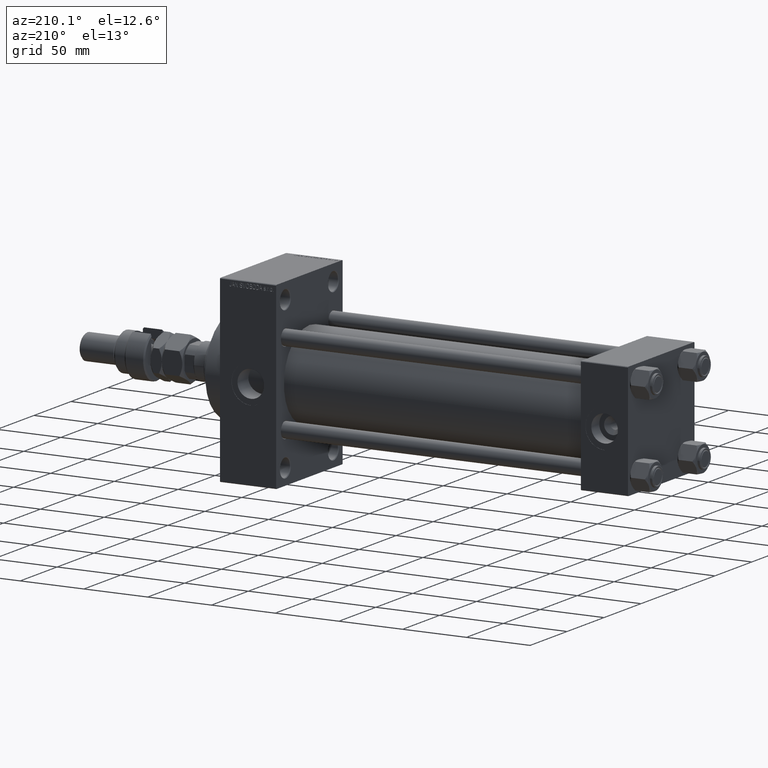
[diagram: clean part render]
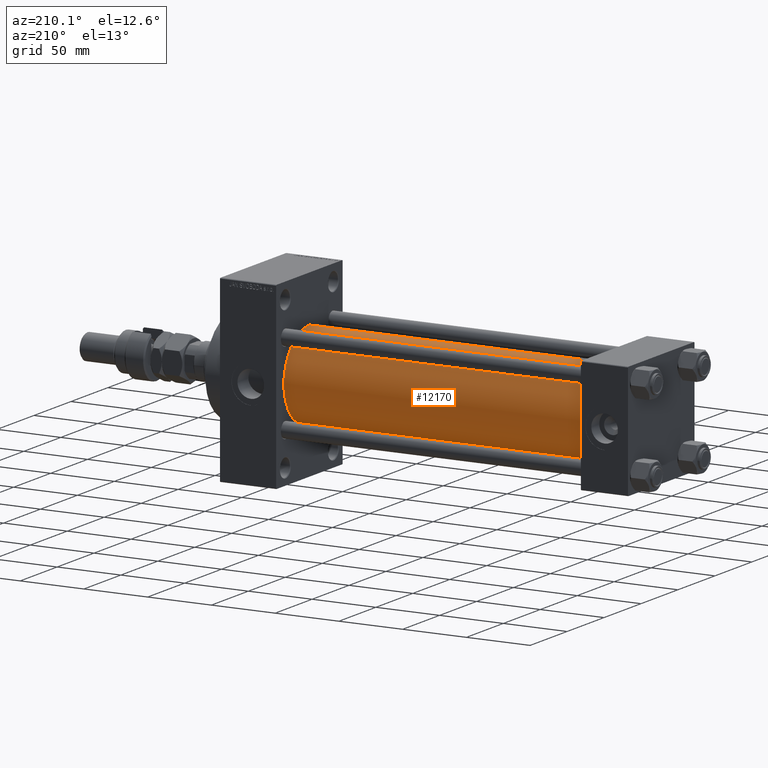
[diagram: same view with one face highlighted and labeled with its STEP entity id]
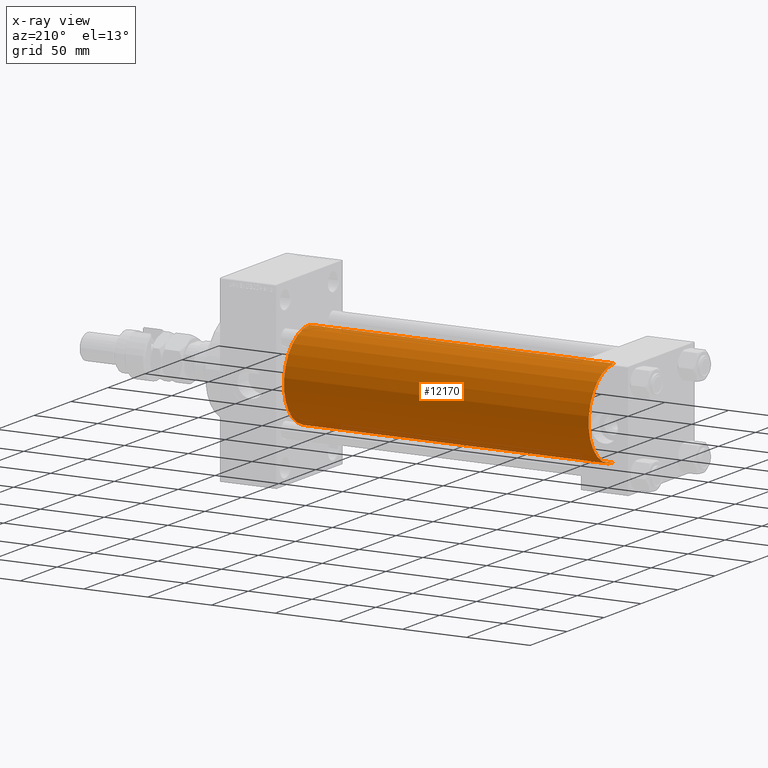
[diagram: x-ray of the same camera — body ghosted, the highlighted face saturated]
A machine part, auxiliary view. The second image highlights one B-rep face of the part: STEP entity #12170.
The next image is the same camera in x-ray: the body ghosted, the highlighted face saturated — about 0% of this face is hidden behind the body in this view.
In plain terms, the highlighted cylindrical surface (partial cylindrical patch) has radius 34.5 mm, axis along (-1, -0, -0).
Its self-contained STEP definition (entity closure, byte-faithful):
#516 = VERTEX_POINT ( 'NONE', #44344 ) ;
#1080 = ORIENTED_EDGE ( 'NONE', *, *, #14675, .T. ) ;
#2319 = DIRECTION ( 'NONE',  ( -1.000000000000000000, -0.000000000000000000, -0.000000000000000000 ) ) ;
#3243 = LINE ( 'NONE', #23443, #17301 ) ;
#3747 = DIRECTION ( 'NONE',  ( 0.000000000000000000, 0.000000000000000000, 1.000000000000000000 ) ) ;
#6593 = EDGE_CURVE ( 'NONE', #45327, #29222, #47633, .T. ) ;
#9919 = CARTESIAN_POINT ( 'NONE',  ( 275.9999999999999432, 1.622946243093157097E-15, -34.50000000000000000 ) ) ;
#11171 = CARTESIAN_POINT ( 'NONE',  ( 37.00000000000000711, 1.622946243093157097E-15, -34.50000000000000000 ) ) ;
#11822 = DIRECTION ( 'NONE',  ( -1.000000000000000000, -0.000000000000000000, -0.000000000000000000 ) ) ;
#12170 = ADVANCED_FACE ( 'NONE', ( #22207 ), #34114, .T. ) ;
#12406 = CARTESIAN_POINT ( 'NONE',  ( 275.9999999999999432, 1.622946243093157097E-15, -34.50000000000000000 ) ) ;
#13293 = VERTEX_POINT ( 'NONE', #22902 ) ;
#14675 = EDGE_CURVE ( 'NONE', #29222, #13293, #49618, .T. ) ;
#16400 = EDGE_CURVE ( 'NONE', #516, #13293, #3243, .T. ) ;
#17301 = VECTOR ( 'NONE', #49806, 1000.000000000000000 ) ;
#20574 = DIRECTION ( 'NONE',  ( 1.000000000000000000, 0.000000000000000000, 0.000000000000000000 ) ) ;
#21080 = ORIENTED_EDGE ( 'NONE', *, *, #6593, .T. ) ;
#22207 = FACE_OUTER_BOUND ( 'NONE', #22870, .T. ) ;
#22870 = EDGE_LOOP ( 'NONE', ( #25617, #21080, #1080, #29445 ) ) ;
#22902 = CARTESIAN_POINT ( 'NONE',  ( 37.00000000000000711, -2.602085213965210642E-15, 34.50000000000000000 ) ) ;
#23443 = CARTESIAN_POINT ( 'NONE',  ( 275.9999999999999432, -2.602085213965210642E-15, 34.50000000000000000 ) ) ;
#25617 = ORIENTED_EDGE ( 'NONE', *, *, #37720, .F. ) ;
#25904 = CIRCLE ( 'NONE', #39670, 34.50000000000000000 ) ;
#28801 = CARTESIAN_POINT ( 'NONE',  ( 37.00000000000000711, -2.602085213965210642E-15, 0.000000000000000000 ) ) ;
#29184 = CARTESIAN_POINT ( 'NONE',  ( 275.9999999999999432, -2.602085213965210642E-15, 0.000000000000000000 ) ) ;
#29222 = VERTEX_POINT ( 'NONE', #11171 ) ;
#29445 = ORIENTED_EDGE ( 'NONE', *, *, #16400, .F. ) ;
#30071 = CARTESIAN_POINT ( 'NONE',  ( 275.9999999999999432, -2.602085213965210642E-15, 0.000000000000000000 ) ) ;
#34114 = CYLINDRICAL_SURFACE ( 'NONE', #36434, 34.50000000000000000 ) ;
#34568 = VECTOR ( 'NONE', #2319, 1000.000000000000000 ) ;
#36434 = AXIS2_PLACEMENT_3D ( 'NONE', #30071, #11822, #3747 ) ;
#37720 = EDGE_CURVE ( 'NONE', #45327, #516, #25904, .T. ) ;
#39670 = AXIS2_PLACEMENT_3D ( 'NONE', #29184, #20574, #44654 ) ;
#41212 = DIRECTION ( 'NONE',  ( 0.000000000000000000, 0.000000000000000000, 1.000000000000000000 ) ) ;
#43158 = AXIS2_PLACEMENT_3D ( 'NONE', #28801, #44273, #41212 ) ;
#44273 = DIRECTION ( 'NONE',  ( 1.000000000000000000, -0.000000000000000000, 0.000000000000000000 ) ) ;
#44344 = CARTESIAN_POINT ( 'NONE',  ( 275.9999999999999432, -2.602085213965210642E-15, 34.50000000000000000 ) ) ;
#44654 = DIRECTION ( 'NONE',  ( 0.000000000000000000, 0.000000000000000000, -1.000000000000000000 ) ) ;
#45327 = VERTEX_POINT ( 'NONE', #12406 ) ;
#47633 = LINE ( 'NONE', #9919, #34568 ) ;
#49618 = CIRCLE ( 'NONE', #43158, 34.50000000000000000 ) ;
#49806 = DIRECTION ( 'NONE',  ( -1.000000000000000000, -0.000000000000000000, -0.000000000000000000 ) ) ;